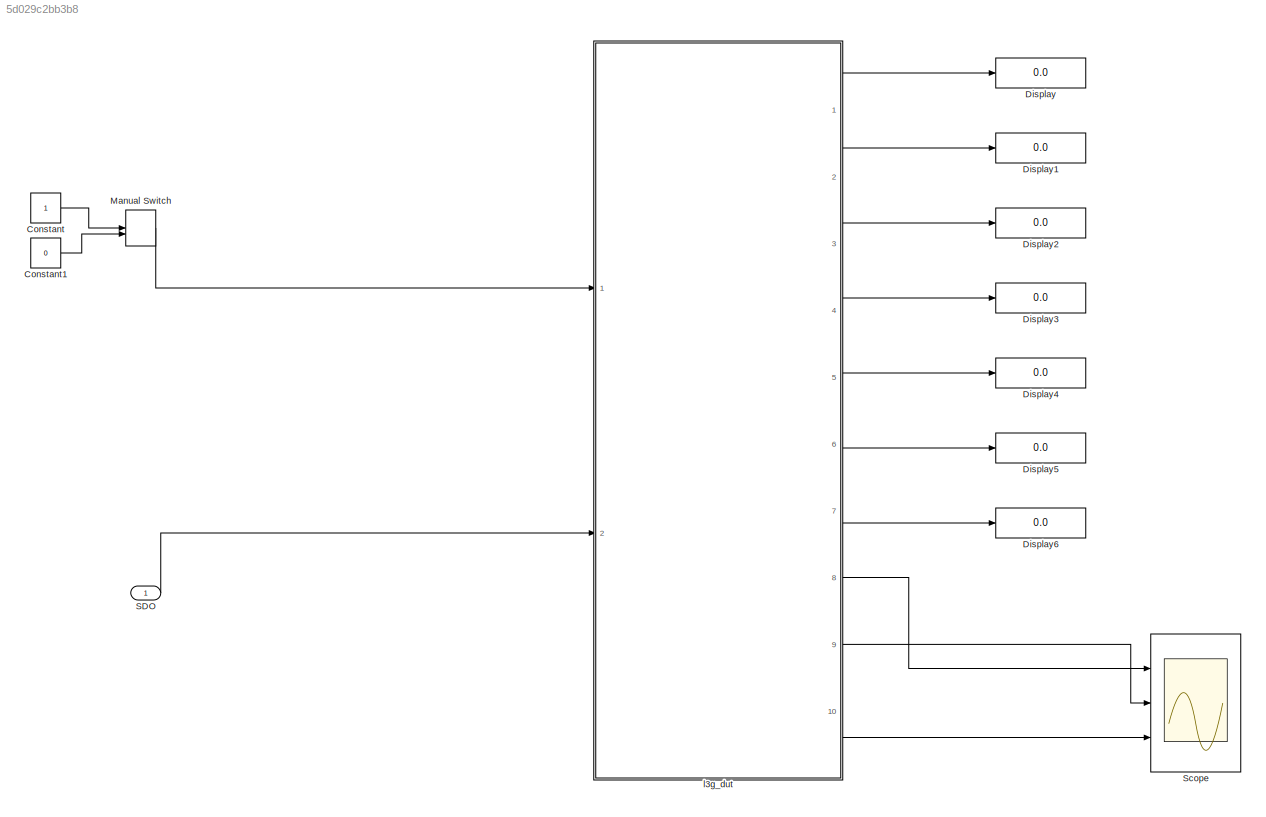
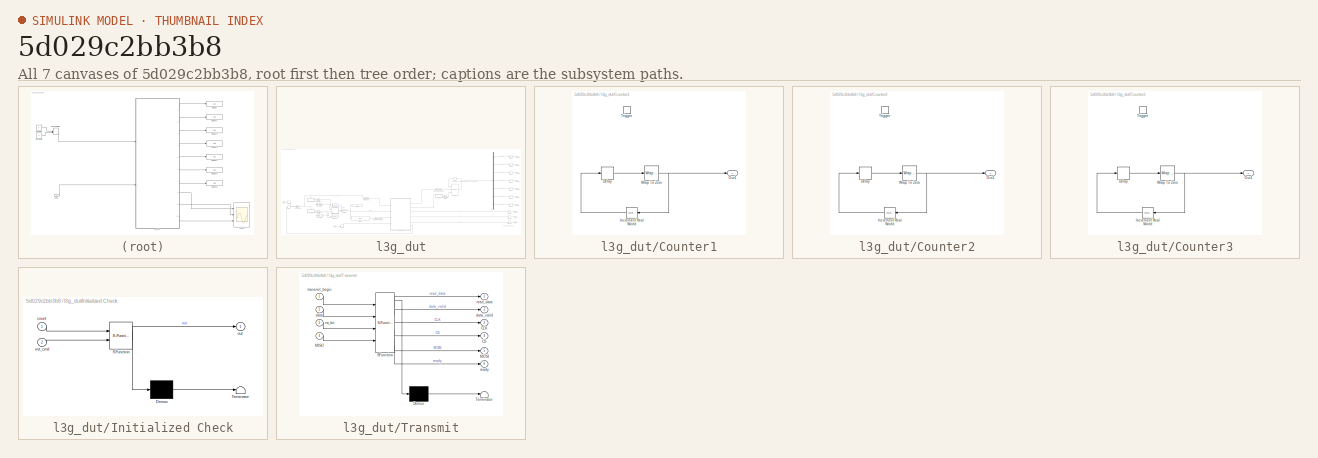
[diagram: thumbnail index - all 7 canvases of the model, root first then tree order]
MODEL slx_5d029c2bb3b8
KIND model
CONFIG AbsTol = auto
CONFIG FixedStep = auto
CONFIG MaxStep = auto
CONFIG MinStep = auto
CONFIG RelTol = 1e-3
CONFIG SampleTimeConstraint = Unconstrained
CONFIG Solver = ode45
CONFIG SolverMode = SingleTasking
CONFIG SolverName = ode45
CONFIG StartTime = 0.0
CONFIG StopTime = 100000
WORKSPACE source: MAT-file member
WORKSPACE MCOS: class17 (value not decoded)
BLOCK [Constant] Constant
  OutDataTypeStr = boolean
  SampleTime = 1
BLOCK [Constant] Constant1
  OutDataTypeStr = boolean
  SampleTime = 1
  Value = 0
BLOCK [Display] Display
  Decimation = 1
  Ports = [1]
BLOCK [Display] Display1
  Decimation = 1
  Ports = [1]
BLOCK [Display] Display2
  Decimation = 1
  Ports = [1]
BLOCK [Display] Display3
  Decimation = 1
  Ports = [1]
BLOCK [Display] Display4
  Decimation = 1
  Ports = [1]
BLOCK [Display] Display5
  Decimation = 1
  Ports = [1]
BLOCK [Display] Display6
  Decimation = 1
  Ports = [1]
BLOCK [ManualSwitch] Manual Switch
BLOCK [Inport] SDO
  IconDisplay = Port number
BLOCK [Scope] Scope
  Floating = off
  LimitDataPoints = off
  NumInputPorts = 3
  Ports = [3]
  TimeRange = 3000
  YMax = 5~5~5
  YMin = -5~-5~-5
  ZoomMode = xonly
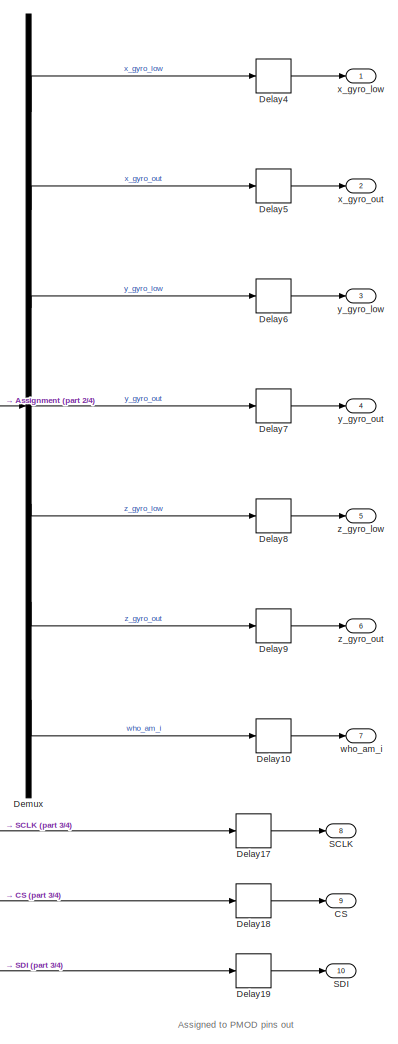
[diagram: l3g_dut - part 1/4, right side, full height]
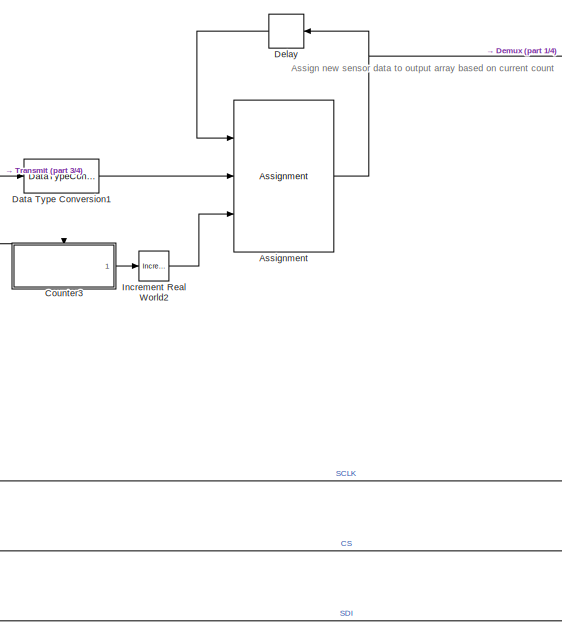
[diagram: l3g_dut - part 2/4, middle right region]
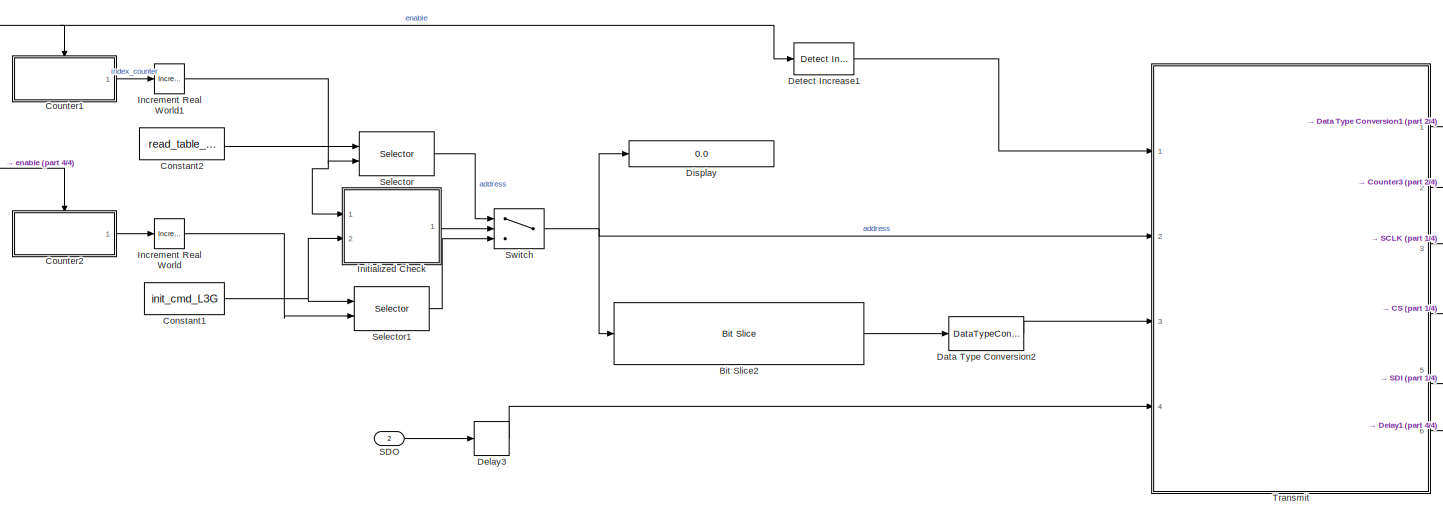
[diagram: l3g_dut - part 3/4, bottom left region]
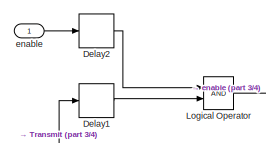
[diagram: l3g_dut - part 4/4, middle left region]
BLOCK [SubSystem] l3g_dut
  MinMaxOverflowLogging = MinMaxAndOverflow
  Ports = [2, 10]
  RequestExecContextInheritance = off
  TreatAsAtomicUnit = on
BLOCK [Assignment] l3g_dut/Assignment
  DiagnosticForDimensions = Warning
  IndexOptions = Index vector (port)
  OutputSizes = size(read_table,2)
  Ports = [3, 1]
BLOCK [Reference] l3g_dut/Bit Slice2  REF=hdlsllib/HDL Operations/Bit Slice
  Ports = [1, 1]
  SourceBlock = hdlsllib/HDL Operations/Bit Slice
  SourceType = Bit Slice
  lidx = message_length-1
  ridx = message_length-1
BLOCK [Outport] l3g_dut/CS
  IconDisplay = Port number
  Port = 9
BLOCK [Constant] l3g_dut/Constant1
  OutDataTypeStr = uint16
  SampleTime = 1
  Value = init_cmd_L3G
BLOCK [Constant] l3g_dut/Constant2
  OutDataTypeStr = uint16
  SampleTime = 1
  Value = read_table_L3G
BLOCK [SubSystem] l3g_dut/Counter1
  Ports = [0, 1, 0, 1]
  RequestExecContextInheritance = off
  TreatAsAtomicUnit = on
BLOCK [Delay] l3g_dut/Counter1/Delay
  DelayLength = 1
  InitialCondition = 1
  InputPortMap = u0
  Ports = [1, 1]
BLOCK [Reference] l3g_dut/Counter1/Increment Real World  REF=simulink/Additional Math
& Discrete/Additional Math:
Increment - Decrement/Increment
Real World
  Ports = [1, 1]
  SourceBlock = simulink/Additional Math\n& Discrete/Additional Math:\nIncrement - Decrement/Increment\nReal World
  SourceType = Real World Value Increment
BLOCK [Outport] l3g_dut/Counter1/Out1
  IconDisplay = Port number
  InitialOutput = 0
  OutDataTypeStr = int16
BLOCK [TriggerPort] l3g_dut/Counter1/Trigger
  PortDimensions = 1
  Ports = []
  StatesWhenEnabling = held
BLOCK [Reference] l3g_dut/Counter1/Wrap To Zero  REF=simulink/Discontinuities/Wrap To Zero
  DisableCoverage = on
  Ports = [1, 1]
  SourceBlock = simulink/Discontinuities/Wrap To Zero
  SourceType = Wrap To Zero
  Threshold = size(read_table_L3G,2)-1
BLOCK [SubSystem] l3g_dut/Counter2
  Ports = [0, 1, 0, 1]
  RequestExecContextInheritance = off
  TreatAsAtomicUnit = on
BLOCK [Delay] l3g_dut/Counter2/Delay
  DelayLength = 1
  InitialCondition = 1
  InputPortMap = u0
  Ports = [1, 1]
BLOCK [Reference] l3g_dut/Counter2/Increment Real World  REF=simulink/Additional Math
& Discrete/Additional Math:
Increment - Decrement/Increment
Real World
  Ports = [1, 1]
  SourceBlock = simulink/Additional Math\n& Discrete/Additional Math:\nIncrement - Decrement/Increment\nReal World
  SourceType = Real World Value Increment
BLOCK [Outport] l3g_dut/Counter2/Out1
  IconDisplay = Port number
  InitialOutput = 0
  OutDataTypeStr = int16
BLOCK [TriggerPort] l3g_dut/Counter2/Trigger
  PortDimensions = 1
  Ports = []
  StatesWhenEnabling = held
BLOCK [Reference] l3g_dut/Counter2/Wrap To Zero  REF=simulink/Discontinuities/Wrap To Zero
  DisableCoverage = on
  Ports = [1, 1]
  SourceBlock = simulink/Discontinuities/Wrap To Zero
  SourceType = Wrap To Zero
  Threshold = size(init_cmd_L3G,2)-1
BLOCK [SubSystem] l3g_dut/Counter3
  Ports = [0, 1, 0, 1]
  RequestExecContextInheritance = off
  TreatAsAtomicUnit = on
BLOCK [Delay] l3g_dut/Counter3/Delay
  DelayLength = 1
  InitialCondition = 0
  InputPortMap = u0
  Ports = [1, 1]
BLOCK [Reference] l3g_dut/Counter3/Increment Real World  REF=simulink/Additional Math
& Discrete/Additional Math:
Increment - Decrement/Increment
Real World
  Ports = [1, 1]
  SourceBlock = simulink/Additional Math\n& Discrete/Additional Math:\nIncrement - Decrement/Increment\nReal World
  SourceType = Real World Value Increment
BLOCK [Outport] l3g_dut/Counter3/Out1
  IconDisplay = Port number
  InitialOutput = 0
  OutDataTypeStr = int16
BLOCK [TriggerPort] l3g_dut/Counter3/Trigger
  PortDimensions = 1
  Ports = []
  StatesWhenEnabling = held
BLOCK [Reference] l3g_dut/Counter3/Wrap To Zero  REF=simulink/Discontinuities/Wrap To Zero
  DisableCoverage = on
  Ports = [1, 1]
  SourceBlock = simulink/Discontinuities/Wrap To Zero
  SourceType = Wrap To Zero
  Threshold = size(read_table_L3G,2)-1
BLOCK [DataTypeConversion] l3g_dut/Data Type Conversion1
  ConvertRealWorld = Stored Integer (SI)
  OutDataTypeStr = int8
  RndMeth = Floor
  SaturateOnIntegerOverflow = off
BLOCK [DataTypeConversion] l3g_dut/Data Type Conversion2
  RndMeth = Floor
  SaturateOnIntegerOverflow = off
BLOCK [Delay] l3g_dut/Delay
  DelayLength = 1
  InitialCondition = zeros(1,size(read_table_L3G,2))
  InputPortMap = u0
  Ports = [1, 1]
  SampleTime = 1
BLOCK [Delay] l3g_dut/Delay1
  DelayLength = 1
  InitialCondition = 1
  InputPortMap = u0
  Ports = [1, 1]
BLOCK [Delay] l3g_dut/Delay10
  DelayLength = 1
  InitialCondition = 0
  InputPortMap = u0
  Ports = [1, 1]
BLOCK [Delay] l3g_dut/Delay17
  DelayLength = 1
  InitialCondition = 0
  InputPortMap = u0
  Ports = [1, 1]
BLOCK [Delay] l3g_dut/Delay18
  DelayLength = 1
  InitialCondition = 0
  InputPortMap = u0
  Ports = [1, 1]
BLOCK [Delay] l3g_dut/Delay19
  DelayLength = 1
  InitialCondition = 0
  InputPortMap = u0
  Ports = [1, 1]
BLOCK [Delay] l3g_dut/Delay2
  DelayLength = 1
  InitialCondition = 1
  InputPortMap = u0
  Ports = [1, 1]
BLOCK [Delay] l3g_dut/Delay3
  DelayLength = 1
  InitialCondition = 1
  InputPortMap = u0
  Ports = [1, 1]
BLOCK [Delay] l3g_dut/Delay4
  DelayLength = 1
  InitialCondition = 0
  InputPortMap = u0
  Ports = [1, 1]
BLOCK [Delay] l3g_dut/Delay5
  DelayLength = 1
  InitialCondition = 0
  InputPortMap = u0
  Ports = [1, 1]
BLOCK [Delay] l3g_dut/Delay6
  DelayLength = 1
  InitialCondition = 0
  InputPortMap = u0
  Ports = [1, 1]
BLOCK [Delay] l3g_dut/Delay7
  DelayLength = 1
  InitialCondition = 0
  InputPortMap = u0
  Ports = [1, 1]
BLOCK [Delay] l3g_dut/Delay8
  DelayLength = 1
  InitialCondition = 0
  InputPortMap = u0
  Ports = [1, 1]
BLOCK [Delay] l3g_dut/Delay9
  DelayLength = 1
  InitialCondition = 0
  InputPortMap = u0
  Ports = [1, 1]
BLOCK [Demux] l3g_dut/Demux
  DisplayOption = bar
  Outputs = 7
  Ports = [1, 7]
BLOCK [Reference] l3g_dut/Detect Increase1  REF=simulink/Logic and Bit
Operations/Detect
Increase
  InputProcessing = Inherited
  OutDataTypeStr = boolean
  Ports = [1, 1]
  SourceBlock = simulink/Logic and Bit\nOperations/Detect\nIncrease
  SourceType = Detect Increase
  vinit = 0
BLOCK [Display] l3g_dut/Display
  Decimation = 1
  Format = binary (Stored Integer)
  Ports = [1]
BLOCK [Reference] l3g_dut/Increment Real World  REF=simulink/Additional Math
& Discrete/Additional Math:
Increment - Decrement/Increment
Real World
  Ports = [1, 1]
  SourceBlock = simulink/Additional Math\n& Discrete/Additional Math:\nIncrement - Decrement/Increment\nReal World
  SourceType = Real World Value Increment
BLOCK [Reference] l3g_dut/Increment Real World1  REF=simulink/Additional Math
& Discrete/Additional Math:
Increment - Decrement/Increment
Real World
  Ports = [1, 1]
  SourceBlock = simulink/Additional Math\n& Discrete/Additional Math:\nIncrement - Decrement/Increment\nReal World
  SourceType = Real World Value Increment
BLOCK [Reference] l3g_dut/Increment Real World2  REF=simulink/Additional Math
& Discrete/Additional Math:
Increment - Decrement/Increment
Real World
  Ports = [1, 1]
  SourceBlock = simulink/Additional Math\n& Discrete/Additional Math:\nIncrement - Decrement/Increment\nReal World
  SourceType = Real World Value Increment
BLOCK [SubSystem] l3g_dut/Initialized Check
  ErrorFcn = Stateflow.Translate.translate
  PermitHierarchicalResolution = ExplicitOnly
  Ports = [2, 1]
  RequestExecContextInheritance = off
  SFBlockType = MATLAB Function
  TreatAsAtomicUnit = on
BLOCK [Demux] l3g_dut/Initialized Check/ Demux 
  Outputs = 1
  Ports = [1, 1]
BLOCK [S-Function] l3g_dut/Initialized Check/ SFunction 
  EnableBusSupport = on
  FunctionName = sf_sfun
  PortCounts = [2 2]
  Ports = [2, 2]
  Tag = Stateflow S-Function L3G4200D_SPI 2
BLOCK [Terminator] l3g_dut/Initialized Check/ Terminator 
BLOCK [Inport] l3g_dut/Initialized Check/count
  IconDisplay = Port number
BLOCK [Inport] l3g_dut/Initialized Check/init_cmd
  IconDisplay = Port number
  Port = 2
BLOCK [Outport] l3g_dut/Initialized Check/out
  IconDisplay = Port number
BLOCK [Logic] l3g_dut/Logical Operator
  AllPortsSameDT = off
  OutDataTypeStr = boolean
  Ports = [2, 1]
BLOCK [Outport] l3g_dut/SCLK
  IconDisplay = Port number
  Port = 8
BLOCK [Outport] l3g_dut/SDI
  IconDisplay = Port number
  Port = 10
BLOCK [Inport] l3g_dut/SDO
  IconDisplay = Port number
  Port = 2
BLOCK [Selector] l3g_dut/Selector
  IndexOptions = Index vector (port)
  Indices = [1 3]
  InputPortWidth = size(read_table_L3G,2)
  Ports = [2, 1]
BLOCK [Selector] l3g_dut/Selector1
  IndexOptions = Index vector (port)
  Indices = [1 3]
  InputPortWidth = size(init_cmd_L3G,2)
  Ports = [2, 1]
BLOCK [Switch] l3g_dut/Switch
  Criteria = u2 > Threshold
  InputSameDT = off
  SaturateOnIntegerOverflow = off
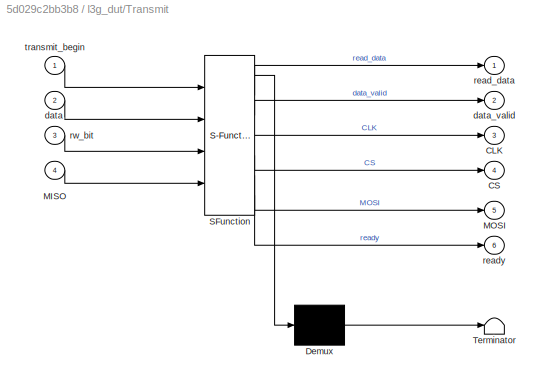
BLOCK [SubSystem] l3g_dut/Transmit
  ErrorFcn = Stateflow.Translate.translate
  PermitHierarchicalResolution = ExplicitOnly
  Ports = [4, 6]
  RequestExecContextInheritance = off
  SFBlockType = Chart
  TreatAsAtomicUnit = on
BLOCK [Demux] l3g_dut/Transmit/ Demux 
  Outputs = 1
  Ports = [1, 1]
BLOCK [S-Function] l3g_dut/Transmit/ SFunction 
  EnableBusSupport = on
  FunctionName = sf_sfun
  PortCounts = [4 7]
  Ports = [4, 7]
  Tag = Stateflow S-Function L3G4200D_SPI 1
BLOCK [Terminator] l3g_dut/Transmit/ Terminator 
BLOCK [Outport] l3g_dut/Transmit/CLK
  IconDisplay = Port number
  Port = 3
BLOCK [Outport] l3g_dut/Transmit/CS
  IconDisplay = Port number
  Port = 4
BLOCK [Inport] l3g_dut/Transmit/MISO
  IconDisplay = Port number
  Port = 4
BLOCK [Outport] l3g_dut/Transmit/MOSI
  IconDisplay = Port number
  Port = 5
BLOCK [Inport] l3g_dut/Transmit/data
  IconDisplay = Port number
  Port = 2
BLOCK [Outport] l3g_dut/Transmit/data_valid
  IconDisplay = Port number
  Port = 2
BLOCK [Outport] l3g_dut/Transmit/read_data
  IconDisplay = Port number
BLOCK [Outport] l3g_dut/Transmit/ready
  IconDisplay = Port number
  Port = 6
BLOCK [Inport] l3g_dut/Transmit/rw_bit
  IconDisplay = Port number
  Port = 3
BLOCK [Inport] l3g_dut/Transmit/transmit_begin
  IconDisplay = Port number
BLOCK [Inport] l3g_dut/enable
  IconDisplay = Port number
BLOCK [Outport] l3g_dut/who_am_i
  IconDisplay = Port number
  Port = 7
BLOCK [Outport] l3g_dut/x_gyro_low
  IconDisplay = Port number
BLOCK [Outport] l3g_dut/x_gyro_out
  IconDisplay = Port number
  Port = 2
BLOCK [Outport] l3g_dut/y_gyro_low
  IconDisplay = Port number
  Port = 3
BLOCK [Outport] l3g_dut/y_gyro_out
  IconDisplay = Port number
  Port = 4
BLOCK [Outport] l3g_dut/z_gyro_low
  IconDisplay = Port number
  Port = 5
BLOCK [Outport] l3g_dut/z_gyro_out
  IconDisplay = Port number
  Port = 6
ANNOTATION l3g_dut: Assign new sensor data to output array based on current count
ANNOTATION l3g_dut: Assigned to PMOD pins out
LINE Constant1:1 -> Manual Switch:2
LINE Constant:1 -> Manual Switch:1
LINE Manual Switch:1 -> l3g_dut:1
LINE SDO:1 -> l3g_dut:2
NET l3g_dut/Assignment:1 -> l3g_dut/Delay:1, l3g_dut/Demux:1
LINE l3g_dut/Bit Slice2:1 -> l3g_dut/Data Type Conversion2:1
NET l3g_dut/Constant1:1 -> l3g_dut/Initialized Check:2, l3g_dut/Selector1:1
LINE l3g_dut/Constant2:1 -> l3g_dut/Selector:1
LINE l3g_dut/Counter1/Delay:1 -> l3g_dut/Counter1/Wrap To Zero:1
LINE l3g_dut/Counter1/Increment Real World:1 -> l3g_dut/Counter1/Delay:1
NET l3g_dut/Counter1/Wrap To Zero:1 -> l3g_dut/Counter1/Increment Real World:1, l3g_dut/Counter1/Out1:1
LINE l3g_dut/Counter1:1 -> l3g_dut/Increment Real World1:1
LINE l3g_dut/Counter2/Delay:1 -> l3g_dut/Counter2/Wrap To Zero:1
LINE l3g_dut/Counter2/Increment Real World:1 -> l3g_dut/Counter2/Delay:1
NET l3g_dut/Counter2/Wrap To Zero:1 -> l3g_dut/Counter2/Increment Real World:1, l3g_dut/Counter2/Out1:1
LINE l3g_dut/Counter2:1 -> l3g_dut/Increment Real World:1
LINE l3g_dut/Counter3/Delay:1 -> l3g_dut/Counter3/Wrap To Zero:1
LINE l3g_dut/Counter3/Increment Real World:1 -> l3g_dut/Counter3/Delay:1
NET l3g_dut/Counter3/Wrap To Zero:1 -> l3g_dut/Counter3/Increment Real World:1, l3g_dut/Counter3/Out1:1
LINE l3g_dut/Counter3:1 -> l3g_dut/Increment Real World2:1
LINE l3g_dut/Data Type Conversion1:1 -> l3g_dut/Assignment:2
LINE l3g_dut/Data Type Conversion2:1 -> l3g_dut/Transmit:3
LINE l3g_dut/Delay10:1 -> l3g_dut/who_am_i:1
LINE l3g_dut/Delay17:1 -> l3g_dut/SCLK:1
LINE l3g_dut/Delay18:1 -> l3g_dut/CS:1
LINE l3g_dut/Delay19:1 -> l3g_dut/SDI:1
LINE l3g_dut/Delay1:1 -> l3g_dut/Logical Operator:2
LINE l3g_dut/Delay2:1 -> l3g_dut/Logical Operator:1
LINE l3g_dut/Delay3:1 -> l3g_dut/Transmit:4
LINE l3g_dut/Delay4:1 -> l3g_dut/x_gyro_low:1
LINE l3g_dut/Delay5:1 -> l3g_dut/x_gyro_out:1
LINE l3g_dut/Delay6:1 -> l3g_dut/y_gyro_low:1
LINE l3g_dut/Delay7:1 -> l3g_dut/y_gyro_out:1
LINE l3g_dut/Delay8:1 -> l3g_dut/z_gyro_low:1
LINE l3g_dut/Delay9:1 -> l3g_dut/z_gyro_out:1
LINE l3g_dut/Delay:1 -> l3g_dut/Assignment:1
LINE l3g_dut/Demux:1 -> l3g_dut/Delay4:1
LINE l3g_dut/Demux:2 -> l3g_dut/Delay5:1
LINE l3g_dut/Demux:3 -> l3g_dut/Delay6:1
LINE l3g_dut/Demux:4 -> l3g_dut/Delay7:1
LINE l3g_dut/Demux:5 -> l3g_dut/Delay8:1
LINE l3g_dut/Demux:6 -> l3g_dut/Delay9:1
LINE l3g_dut/Demux:7 -> l3g_dut/Delay10:1
LINE l3g_dut/Detect Increase1:1 -> l3g_dut/Transmit:1
NET l3g_dut/Increment Real World1:1 -> l3g_dut/Initialized Check:1, l3g_dut/Selector:2
LINE l3g_dut/Increment Real World2:1 -> l3g_dut/Assignment:3
LINE l3g_dut/Increment Real World:1 -> l3g_dut/Selector1:2
LINE l3g_dut/Initialized Check:1 -> l3g_dut/Switch:2
NET l3g_dut/Logical Operator:1 -> l3g_dut/Counter1:trigger, l3g_dut/Counter2:trigger, l3g_dut/Detect Increase1:1
LINE l3g_dut/SDO:1 -> l3g_dut/Delay3:1
LINE l3g_dut/Selector1:1 -> l3g_dut/Switch:3
LINE l3g_dut/Selector:1 -> l3g_dut/Switch:1
NET l3g_dut/Switch:1 -> l3g_dut/Bit Slice2:1, l3g_dut/Display:1, l3g_dut/Transmit:2
LINE l3g_dut/Transmit:1 -> l3g_dut/Data Type Conversion1:1
LINE l3g_dut/Transmit:2 -> l3g_dut/Counter3:trigger
LINE l3g_dut/Transmit:3 -> l3g_dut/Delay17:1
LINE l3g_dut/Transmit:4 -> l3g_dut/Delay18:1
LINE l3g_dut/Transmit:5 -> l3g_dut/Delay19:1
LINE l3g_dut/Transmit:6 -> l3g_dut/Delay1:1
LINE l3g_dut/enable:1 -> l3g_dut/Delay2:1
LINE l3g_dut:1 -> Display:1
LINE l3g_dut:10 -> Scope:3
LINE l3g_dut:2 -> Display1:1
LINE l3g_dut:3 -> Display2:1
LINE l3g_dut:4 -> Display3:1
LINE l3g_dut:5 -> Display4:1
LINE l3g_dut:6 -> Display5:1
LINE l3g_dut:7 -> Display6:1
LINE l3g_dut:8 -> Scope:1
LINE l3g_dut:9 -> Scope:2
note: NET lines group one-source signal fan-out (src -> all destinations, sorted); 1:1 wires keep LINE
CHART l3g_dut/Transmit states=19 transitions=33
  STATE_LABEL 'IDLE\n'
  STATE_LABEL 'BEGIN'
  STATE_LABEL 'CHIPSELECT'
  STATE_LABEL 'ser_data = sdi_gen(word,cnt)'
  STATE_LABEL 'SCRIPT:\nfunction ser_data = sdi_gen(word,cnt)\n\n\npersistent ser_data_int;\nif isempty(ser_data_int)\n    ser_data_int = false;\nend\n\n\nif cnt == fi(1,0,5,0)\n    ser_data_int = logical(bitget(word, 16));\nelseif cnt == fi(2,0,5,0)\n    ser_data_int = logical(bitget(word, 15));\nelseif cnt == fi(3,0,5,0)\n    ser_data_int = logical(bitget(word, 14));\nelseif cnt == fi(4,0,5,0)\n    ser_data_int = logical(bitge...<+945ch>'
  STATE_LABEL 'WRITE'
  STATE_LABEL 'CLOCK_BEGIN'
  STATE_LABEL 'CLOCK_HIGH'
  STATE_LABEL 'CLOCK_LOW'
  STATE_LABEL 'CLOCK_END'
  STATE_LABEL '{CLK = false;\nbit_count = 0;\nMOSI = sdi_gen(data,1);}'
  STATE_LABEL '[count == clk_wait]\n{CLK = 1; count = 0;bit_count ++;}'
  STATE_LABEL '{count++;}'
  STATE_LABEL '{count++;}'
  STATE_LABEL '[count == clk_wait]\n{CLK = 0; count = 0;\nMOSI = sdi_gen(data, bit_count+1);}'
  STATE_LABEL '[bit_count == message_length]\n{count = 0; transmit_flag = 0; MOSI = 0; data_valid = 1;}'
  STATE_LABEL 'CLOCK_BEGIN'
  STATE_LABEL 'CLOCK_HIGH'
  STATE_LABEL 'CLOCK_LOW'
  STATE_LABEL 'CLOCK_END'
  STATE_LABEL 'READ'
  STATE_LABEL 'CLOCK_BEGIN1'
  STATE_LABEL 'CLOCK_HIGH1'
  STATE_LABEL 'CLOCK_LOW1'
  STATE_LABEL 'CLOCK_LOW3'
  STATE_LABEL 'CLOCK_HIGH3'
  STATE_LABEL 'DATA_VALID1'
  STATE_LABEL 'CLK_END1'
  STATE_LABEL '{CLK = false;\nbit_count = 0;\nMOSI = sdi_gen(data, 1);}'
  STATE_LABEL '[count == clk_wait]\n{CLK = 1; count = 0;bit_count ++;}'
  STATE_LABEL '{count++;}'
  STATE_LABEL '{count++;}'
  STATE_LABEL '[count == clk_wait]\n{CLK = 0; count = 0;\nMOSI = sdi_gen(data, bit_count+1);}'
  STATE_LABEL '[bit_count == message_length/2]\n{count = 0; MOSI = 0; CLK = false;\nread_temp = 0;}'
  STATE_LABEL '[count == clk_wait]\n{CLK = 1; count = 0;bit_count ++;\nread_bit = int16(MISO);\nread_temp = read_temp<<1;\nread_temp = read_temp|read_bit;}'
  STATE_LABEL '{count++;}'
  STATE_LABEL '{count++;}'
  STATE_LABEL '[count == clk_wait]\n{CLK = 0; count = 0;}'
  STATE_LABEL '[bit_count == message_length]\n{count = 0; MOSI = 0; data_valid = 1; }'
  STATE_LABEL '{read_data= read_temp; transmit_flag = 0;}'
CHART l3g_dut/Initialized Check states=1 transitions=1
  STATE_LABEL 'eML_blk_kernel()'
  STATE_LABEL 'SCRIPT:\nfunction out = fcn(count, init_cmd)\n\n\npersistent init_complete;\nif isempty(init_complete)\n    if count == fi(size(init_cmd,1)+1,0,16,0)  % set true after initialization is sent \n        out = false;\n        init_complete = true;\n    else\n        out = false;\n    end\nelse\n        out = true;\n    \nend\n'
